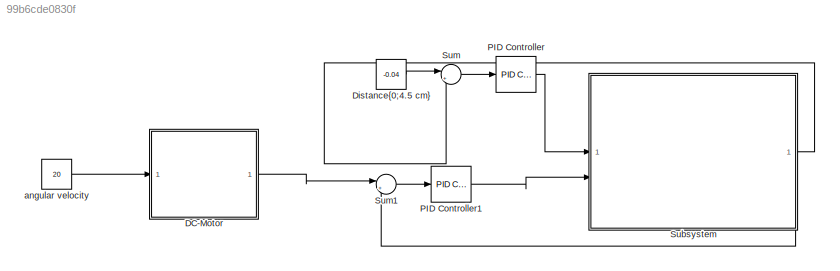
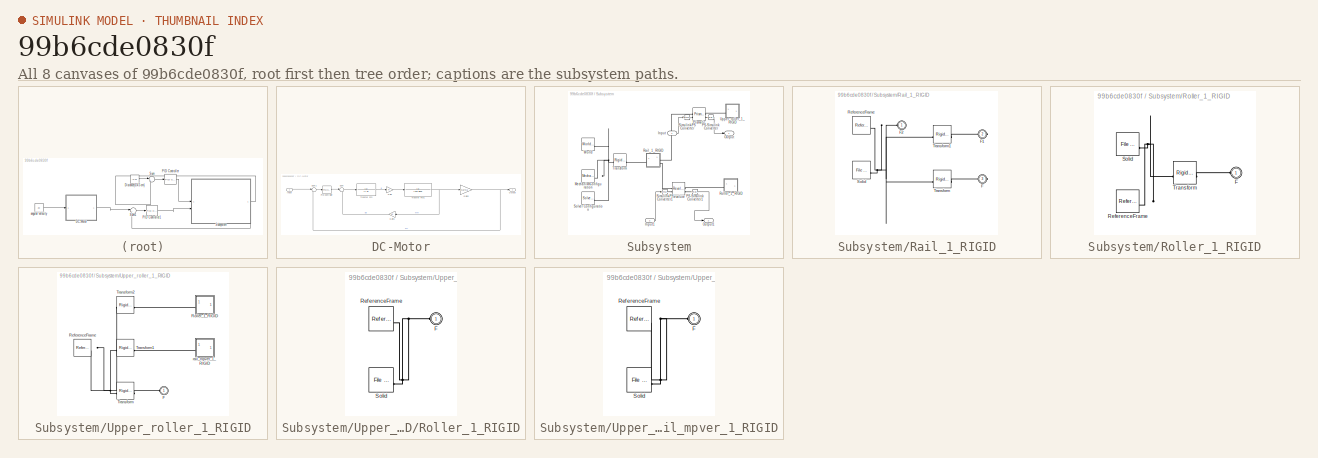
[diagram: thumbnail index - all 8 canvases of the model, root first then tree order]
MODEL slx_99b6cde0830f
KIND model
CONFIG AbsTol = auto
CONFIG EnableMultiTasking = off
CONFIG FixedStep = auto
CONFIG MaxStep = auto
CONFIG MinStep = auto
CONFIG RelTol = 1e-3
CONFIG SampleTimeConstraint = Unconstrained
CONFIG SolverName = VariableStepAuto
CONFIG StartTime = 0.0
CONFIG StopTime = 10.0
WORKSPACE source: external: MATLAB File  (data not in archive)
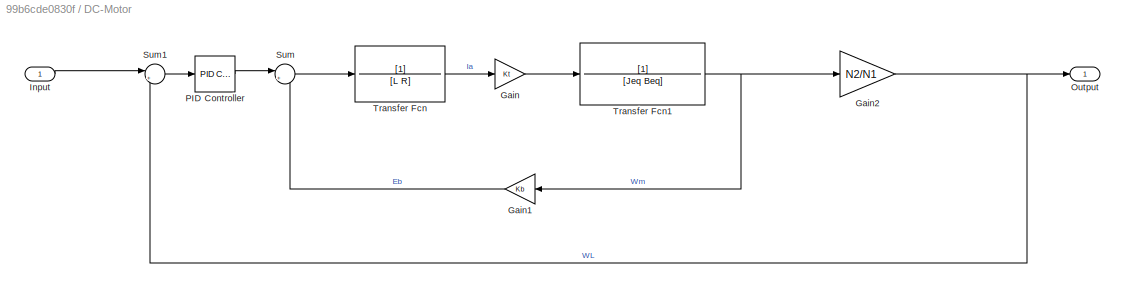
BLOCK [SubSystem] DC-Motor
BLOCK [Gain] DC-Motor/Gain
  Gain = Kt
BLOCK [Gain] DC-Motor/Gain1
  Gain = Kb
  NameLocation = top
BLOCK [Gain] DC-Motor/Gain2
  Gain = N2/N1
BLOCK [Inport] DC-Motor/Input
BLOCK [Outport] DC-Motor/Output
BLOCK [Reference] DC-Motor/PID Controller  REF=slpidlib/PID Controller
  LibrarySourceBlock = simulink/Continuous/PID Controller
  SourceBlock = slpidlib/PID Controller
  SourceType = PID 1dof
BLOCK [Sum] DC-Motor/Sum
  Inputs = |+-
BLOCK [Sum] DC-Motor/Sum1
  Inputs = |+-
BLOCK [TransferFcn] DC-Motor/Transfer Fcn
  Denominator = [L R]
BLOCK [TransferFcn] DC-Motor/Transfer Fcn1
  Denominator = [Jeq Beq]
BLOCK [Constant] Distance{0;4.5 cm}
  Value = -0.04
BLOCK [Reference] PID Controller  REF=slpidlib/PID Controller
  LibrarySourceBlock = simulink/Continuous/PID Controller
  SourceBlock = slpidlib/PID Controller
  SourceType = PID 1dof
BLOCK [Reference] PID Controller1  REF=slpidlib/PID Controller
  LibrarySourceBlock = simulink/Continuous/PID Controller
  SourceBlock = slpidlib/PID Controller
  SourceType = PID 1dof
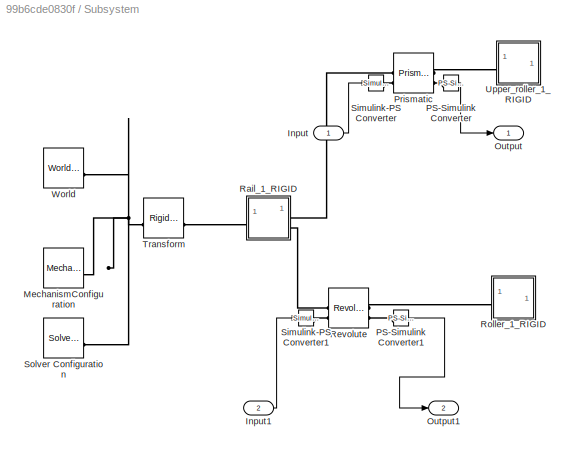
BLOCK [SubSystem] Subsystem
BLOCK [Inport] Subsystem/Input
BLOCK [Inport] Subsystem/Input1
  Port = 2
BLOCK [Reference] Subsystem/MechanismConfiguration  REF=sm_lib/Utilities/Mechanism
Configuration
  SourceBlock = sm_lib/Utilities/Mechanism\nConfiguration
  SourceType = Mechanism\nConfiguration
BLOCK [Outport] Subsystem/Output
BLOCK [Outport] Subsystem/Output1
  Port = 2
BLOCK [Reference] Subsystem/PS-Simulink Converter  REF=nesl_utility/PS-Simulink
Converter
  SourceBlock = nesl_utility/PS-Simulink\nConverter
  SourceType = PS-Simulink\nConverter
BLOCK [Reference] Subsystem/PS-Simulink Converter1  REF=nesl_utility/PS-Simulink
Converter
  SourceBlock = nesl_utility/PS-Simulink\nConverter
  SourceType = PS-Simulink\nConverter
BLOCK [Reference] Subsystem/Prismatic  REF=sm_lib/Joints/Prismatic
Joint
  SourceBlock = sm_lib/Joints/Prismatic\nJoint
  SourceType = Prismatic\nJoint
BLOCK [SubSystem] Subsystem/Rail_1_RIGID
BLOCK [PMIOPort] Subsystem/Rail_1_RIGID/F
  Port = 3
  Side = Right
BLOCK [PMIOPort] Subsystem/Rail_1_RIGID/F1
  Port = 2
  Side = Right
BLOCK [PMIOPort] Subsystem/Rail_1_RIGID/F2
  Side = Left
BLOCK [Reference] Subsystem/Rail_1_RIGID/ReferenceFrame  REF=sm_lib/Frames and
Transforms/Reference
Frame
  SourceBlock = sm_lib/Frames and\nTransforms/Reference\nFrame
  SourceType = Reference\nFrame
BLOCK [Reference] Subsystem/Rail_1_RIGID/Solid  REF=sm_lib/Body Elements/File Solid
  SourceBlock = sm_lib/Body Elements/File Solid
  SourceType = File Solid
BLOCK [Reference] Subsystem/Rail_1_RIGID/Transform  REF=sm_lib/Frames and
Transforms/Rigid
Transform
  SourceBlock = sm_lib/Frames and\nTransforms/Rigid\nTransform
  SourceType = Rigid\nTransform
BLOCK [Reference] Subsystem/Rail_1_RIGID/Transform1  REF=sm_lib/Frames and
Transforms/Rigid
Transform
  SourceBlock = sm_lib/Frames and\nTransforms/Rigid\nTransform
  SourceType = Rigid\nTransform
BLOCK [Reference] Subsystem/Revolute  REF=sm_lib/Joints/Revolute Joint
  SourceBlock = sm_lib/Joints/Revolute Joint
  SourceType = Revolute Joint
BLOCK [SubSystem] Subsystem/Roller_1_RIGID
BLOCK [PMIOPort] Subsystem/Roller_1_RIGID/F
  Side = Left
BLOCK [Reference] Subsystem/Roller_1_RIGID/ReferenceFrame  REF=sm_lib/Frames and
Transforms/Reference
Frame
  SourceBlock = sm_lib/Frames and\nTransforms/Reference\nFrame
  SourceType = Reference\nFrame
BLOCK [Reference] Subsystem/Roller_1_RIGID/Solid  REF=sm_lib/Body Elements/File Solid
  SourceBlock = sm_lib/Body Elements/File Solid
  SourceType = File Solid
BLOCK [Reference] Subsystem/Roller_1_RIGID/Transform  REF=sm_lib/Frames and
Transforms/Rigid
Transform
  SourceBlock = sm_lib/Frames and\nTransforms/Rigid\nTransform
  SourceType = Rigid\nTransform
BLOCK [Reference] Subsystem/Simulink-PS Converter  REF=nesl_utility/Simulink-PS
Converter
  SourceBlock = nesl_utility/Simulink-PS\nConverter
  SourceType = Simulink-PS\nConverter
BLOCK [Reference] Subsystem/Simulink-PS Converter1  REF=nesl_utility/Simulink-PS
Converter
  SourceBlock = nesl_utility/Simulink-PS\nConverter
  SourceType = Simulink-PS\nConverter
BLOCK [Reference] Subsystem/Solver Configuration  REF=nesl_utility/Solver
Configuration
  SourceBlock = nesl_utility/Solver\nConfiguration
  SourceType = Solver\nConfiguration
BLOCK [Reference] Subsystem/Transform  REF=sm_lib/Frames and
Transforms/Rigid
Transform
  SourceBlock = sm_lib/Frames and\nTransforms/Rigid\nTransform
  SourceType = Rigid\nTransform
BLOCK [SubSystem] Subsystem/Upper_roller_1_RIGID
BLOCK [PMIOPort] Subsystem/Upper_roller_1_RIGID/F
  Side = Left
BLOCK [Reference] Subsystem/Upper_roller_1_RIGID/ReferenceFrame  REF=sm_lib/Frames and
Transforms/Reference
Frame
  SourceBlock = sm_lib/Frames and\nTransforms/Reference\nFrame
  SourceType = Reference\nFrame
BLOCK [SubSystem] Subsystem/Upper_roller_1_RIGID/Roller_1_RIGID
BLOCK [PMIOPort] Subsystem/Upper_roller_1_RIGID/Roller_1_RIGID/F
  Side = Left
BLOCK [Reference] Subsystem/Upper_roller_1_RIGID/Roller_1_RIGID/ReferenceFrame  REF=sm_lib/Frames and
Transforms/Reference
Frame
  SourceBlock = sm_lib/Frames and\nTransforms/Reference\nFrame
  SourceType = Reference\nFrame
BLOCK [Reference] Subsystem/Upper_roller_1_RIGID/Roller_1_RIGID/Solid  REF=sm_lib/Body Elements/File Solid
  SourceBlock = sm_lib/Body Elements/File Solid
  SourceType = File Solid
BLOCK [Reference] Subsystem/Upper_roller_1_RIGID/Transform  REF=sm_lib/Frames and
Transforms/Rigid
Transform
  SourceBlock = sm_lib/Frames and\nTransforms/Rigid\nTransform
  SourceType = Rigid\nTransform
BLOCK [Reference] Subsystem/Upper_roller_1_RIGID/Transform1  REF=sm_lib/Frames and
Transforms/Rigid
Transform
  SourceBlock = sm_lib/Frames and\nTransforms/Rigid\nTransform
  SourceType = Rigid\nTransform
BLOCK [Reference] Subsystem/Upper_roller_1_RIGID/Transform2  REF=sm_lib/Frames and
Transforms/Rigid
Transform
  SourceBlock = sm_lib/Frames and\nTransforms/Rigid\nTransform
  SourceType = Rigid\nTransform
BLOCK [SubSystem] Subsystem/Upper_roller_1_RIGID/rail_mpver_1_RIGID
BLOCK [PMIOPort] Subsystem/Upper_roller_1_RIGID/rail_mpver_1_RIGID/F
  Side = Left
BLOCK [Reference] Subsystem/Upper_roller_1_RIGID/rail_mpver_1_RIGID/ReferenceFrame  REF=sm_lib/Frames and
Transforms/Reference
Frame
  SourceBlock = sm_lib/Frames and\nTransforms/Reference\nFrame
  SourceType = Reference\nFrame
BLOCK [Reference] Subsystem/Upper_roller_1_RIGID/rail_mpver_1_RIGID/Solid  REF=sm_lib/Body Elements/File Solid
  SourceBlock = sm_lib/Body Elements/File Solid
  SourceType = File Solid
BLOCK [Reference] Subsystem/World  REF=sm_lib/Frames and
Transforms/World Frame
  SourceBlock = sm_lib/Frames and\nTransforms/World Frame
  SourceType = World Frame
BLOCK [Sum] Sum
  Inputs = |+-
BLOCK [Sum] Sum1
  Inputs = |+-
BLOCK [Constant] angular velocity
  Value = 20
LINE DC-Motor/Gain1:1 -> DC-Motor/Sum:2
NET DC-Motor/Gain2:1 -> DC-Motor/Output:1, DC-Motor/Sum1:2
LINE DC-Motor/Gain:1 -> DC-Motor/Transfer Fcn1:1
LINE DC-Motor/Input:1 -> DC-Motor/Sum1:1
LINE DC-Motor/PID Controller:1 -> DC-Motor/Sum:1
LINE DC-Motor/Sum1:1 -> DC-Motor/PID Controller:1
LINE DC-Motor/Sum:1 -> DC-Motor/Transfer Fcn:1
NET DC-Motor/Transfer Fcn1:1 -> DC-Motor/Gain1:1, DC-Motor/Gain2:1
LINE DC-Motor/Transfer Fcn:1 -> DC-Motor/Gain:1
LINE DC-Motor:1 -> Sum1:1
LINE Distance{0;4.5 cm}:1 -> Sum:1
LINE PID Controller1:1 -> Subsystem:2
LINE PID Controller:1 -> Subsystem:1
LINE Subsystem/Input1:1 -> Subsystem/Simulink-PS Converter1:1
LINE Subsystem/Input:1 -> Subsystem/Simulink-PS Converter:1
LINE Subsystem/PS-Simulink Converter1:1 -> Subsystem/Output1:1
LINE Subsystem/PS-Simulink Converter:1 -> Subsystem/Output:1
LINE Subsystem:1 -> Sum:2
LINE Subsystem:2 -> Sum1:2
LINE Sum1:1 -> PID Controller1:1
LINE Sum:1 -> PID Controller:1
LINE angular velocity:1 -> DC-Motor:1
PNET net1: Subsystem/MechanismConfiguration:RConn1 -- Subsystem/Solver Configuration:RConn1 -- Subsystem/Transform:LConn1 -- Subsystem/World:RConn1
PLINE Subsystem/PS-Simulink Converter1:LConn1 -- Subsystem/Revolute:RConn2
PLINE Subsystem/PS-Simulink Converter:LConn1 -- Subsystem/Prismatic:RConn2
PLINE Subsystem/Prismatic:LConn1 -- Subsystem/Rail_1_RIGID:RConn1
PLINE Subsystem/Prismatic:LConn2 -- Subsystem/Simulink-PS Converter:RConn1
PLINE Subsystem/Prismatic:RConn1 -- Subsystem/Upper_roller_1_RIGID:LConn1
PLINE Subsystem/Rail_1_RIGID/F1:RConn1 -- Subsystem/Rail_1_RIGID/Transform1:RConn1
PNET net2: Subsystem/Rail_1_RIGID/F2:RConn1 -- Subsystem/Rail_1_RIGID/ReferenceFrame:RConn1 -- Subsystem/Rail_1_RIGID/Solid:RConn1 -- Subsystem/Rail_1_RIGID/Transform1:LConn1 -- Subsystem/Rail_1_RIGID/Transform:LConn1
PLINE Subsystem/Rail_1_RIGID/F:RConn1 -- Subsystem/Rail_1_RIGID/Transform:RConn1
PLINE Subsystem/Rail_1_RIGID:LConn1 -- Subsystem/Transform:RConn1
PLINE Subsystem/Rail_1_RIGID:RConn2 -- Subsystem/Revolute:LConn1
PLINE Subsystem/Revolute:LConn2 -- Subsystem/Simulink-PS Converter1:RConn1
PLINE Subsystem/Revolute:RConn1 -- Subsystem/Roller_1_RIGID:LConn1
PLINE Subsystem/Roller_1_RIGID/F:RConn1 -- Subsystem/Roller_1_RIGID/Transform:RConn1
PNET net3: Subsystem/Roller_1_RIGID/ReferenceFrame:RConn1 -- Subsystem/Roller_1_RIGID/Solid:RConn1 -- Subsystem/Roller_1_RIGID/Transform:LConn1
PLINE Subsystem/Upper_roller_1_RIGID/F:RConn1 -- Subsystem/Upper_roller_1_RIGID/Transform:RConn1
PNET net4: Subsystem/Upper_roller_1_RIGID/ReferenceFrame:RConn1 -- Subsystem/Upper_roller_1_RIGID/Transform1:LConn1 -- Subsystem/Upper_roller_1_RIGID/Transform2:LConn1 -- Subsystem/Upper_roller_1_RIGID/Transform:LConn1
PNET net5: Subsystem/Upper_roller_1_RIGID/Roller_1_RIGID/F:RConn1 -- Subsystem/Upper_roller_1_RIGID/Roller_1_RIGID/ReferenceFrame:RConn1 -- Subsystem/Upper_roller_1_RIGID/Roller_1_RIGID/Solid:RConn1
PLINE Subsystem/Upper_roller_1_RIGID/Roller_1_RIGID:LConn1 -- Subsystem/Upper_roller_1_RIGID/Transform2:RConn1
PLINE Subsystem/Upper_roller_1_RIGID/Transform1:RConn1 -- Subsystem/Upper_roller_1_RIGID/rail_mpver_1_RIGID:LConn1
PNET net6: Subsystem/Upper_roller_1_RIGID/rail_mpver_1_RIGID/F:RConn1 -- Subsystem/Upper_roller_1_RIGID/rail_mpver_1_RIGID/ReferenceFrame:RConn1 -- Subsystem/Upper_roller_1_RIGID/rail_mpver_1_RIGID/Solid:RConn1
note: NET lines group one-source signal fan-out (src -> all destinations, sorted); 1:1 wires keep LINE; PNET lines group multi-terminal physical nets as a canonical sorted terminal list (undirected conserving connections); 2-terminal nets keep the pairwise PLINE form
